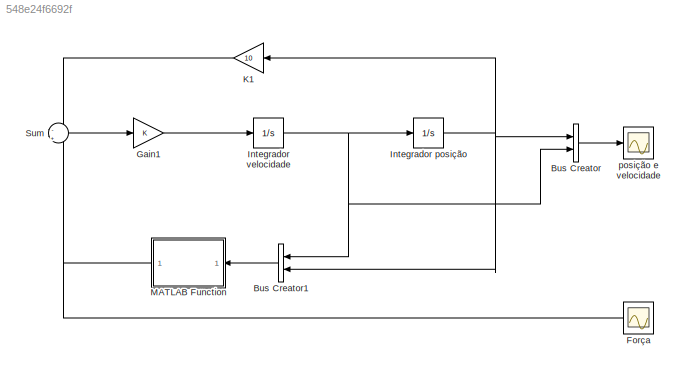
MODEL slx_548e24f6692f
KIND model
CONFIG AbsTol = auto
CONFIG EnableMultiTasking = off
CONFIG FixedStep = auto
CONFIG MaxStep = auto
CONFIG MinStep = auto
CONFIG RelTol = 1e-3
CONFIG SampleTimeConstraint = Unconstrained
CONFIG SolverName = VariableStepAuto
CONFIG StartTime = 0.0
CONFIG StopTime = 1.5
BLOCK [BusCreator] Bus Creator
  DisplayOption = bar
  InheritFromInputs = on
  Inputs = 2
  Ports = [2, 1]
BLOCK [BusCreator] Bus Creator1
  DisplayOption = bar
  InheritFromInputs = on
  Inputs = 2
  NameLocation = top
  Ports = [2, 1]
BLOCK [Scope] Força
  Floating = off
  NumInputPorts = 1
  Ports = [1]
  ScopeSpecificationString = Simulink.scopes.TimeScopeBlockCfg('CurrentConfiguration', extmgr.ConfigurationSet(extmgr.Configuration('Core','General UI',true,'FigureColor',[1 1 1]),extmgr.Configuration('Core','Source UI',true),extmgr.Configuration('Sources','WiredSimulink',true,'DataLoggingVariableName','ScopeData1'),extmgr.Configuration('Visuals','Time Domain',true,'SerializedDisplays',{struct('MinYLimReal','-2.88731','MaxYLi...<+1555ch>
BLOCK [Gain] Gain1
BLOCK [Integrator] Integrador posição
  InitialCondition = 0.05
  Ports = [1, 1]
BLOCK [Integrator] Integrador velocidade
  InitialCondition = -0.5
  Ports = [1, 1]
BLOCK [Gain] K1
  Gain = 10
  NameLocation = top
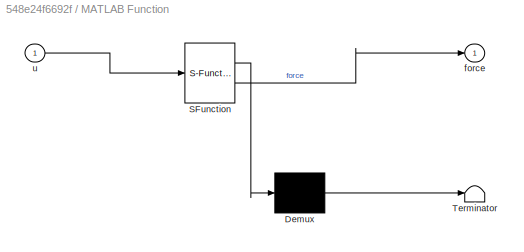
BLOCK [SubSystem] MATLAB Function
  ErrorFcn = Stateflow.Translate.translate
  NameLocation = top
  PermitHierarchicalResolution = ExplicitOnly
  Ports = [1, 1]
  RequestExecContextInheritance = off
  SFBlockType = MATLAB Function
  TreatAsAtomicUnit = on
BLOCK [Demux] MATLAB Function/ Demux 
  Outputs = 1
  Ports = [1, 1]
BLOCK [S-Function] MATLAB Function/ SFunction 
  EnableBusSupport = on
  FunctionName = sf_sfun
  PortCounts = [1 2]
  Ports = [1, 2]
  SFcnIsStateOwnerBlock = off
  SFunctionDeploymentMode = off
  Tag = Stateflow S-Function 2
BLOCK [Terminator] MATLAB Function/ Terminator 
BLOCK [Outport] MATLAB Function/force
BLOCK [Inport] MATLAB Function/u
BLOCK [Sum] Sum
  Inputs = -|+
  Ports = [2, 1]
BLOCK [Scope] posição e velocidade
  Floating = off
  NumInputPorts = 1
  Ports = [1]
  ScopeSpecificationString = Simulink.scopes.TimeScopeBlockCfg('CurrentConfiguration', extmgr.ConfigurationSet(extmgr.Configuration('Core','General UI',true,'FigureColor',[1 1 1]),extmgr.Configuration('Core','Source UI',true),extmgr.Configuration('Sources','WiredSimulink',true),extmgr.Configuration('Visuals','Time Domain',true,'SerializedDisplays',{struct('MinYLimReal','-0.61259','MaxYLimReal','0.27386','YLabelReal','','MinYL...<+1628ch>
LINE Bus Creator1:1 -> MATLAB Function:1
LINE Bus Creator:1 -> posição e velocidade:1
LINE Gain1:1 -> Integrador velocidade:1
NET Integrador posição:1 -> Bus Creator1:2, Bus Creator:1, K1:1
NET Integrador velocidade:1 -> Bus Creator1:1, Bus Creator:2, Integrador posição:1
LINE K1:1 -> Sum:1
NET MATLAB Function:1 -> Força:1, Sum:2
LINE Sum:1 -> Gain1:1
note: NET lines group one-source signal fan-out (src -> all destinations, sorted); 1:1 wires keep LINE
CHART MATLAB Function states=1 transitions=1
  STATE_LABEL 'eML_blk_kernel()'
  STATE_LABEL 'SCRIPT:\nfunction force = fsnub(u)\n    % FSNUB computes the nonlinear force for snubber simulation\n    %\n    % Computes the snubber force as a function of\n    % displacement and velocity\n    %\n    % u(1) = displacement ; x(0) = 0.05 != -0.5 => portante esta variavel\n    %                                              é a velocidade\n    % u(2) = velocity\n\n    xsnub = -0.05; % Location of snubber\n    ...<+295ch>'
CHART  states=0 transitions=0
